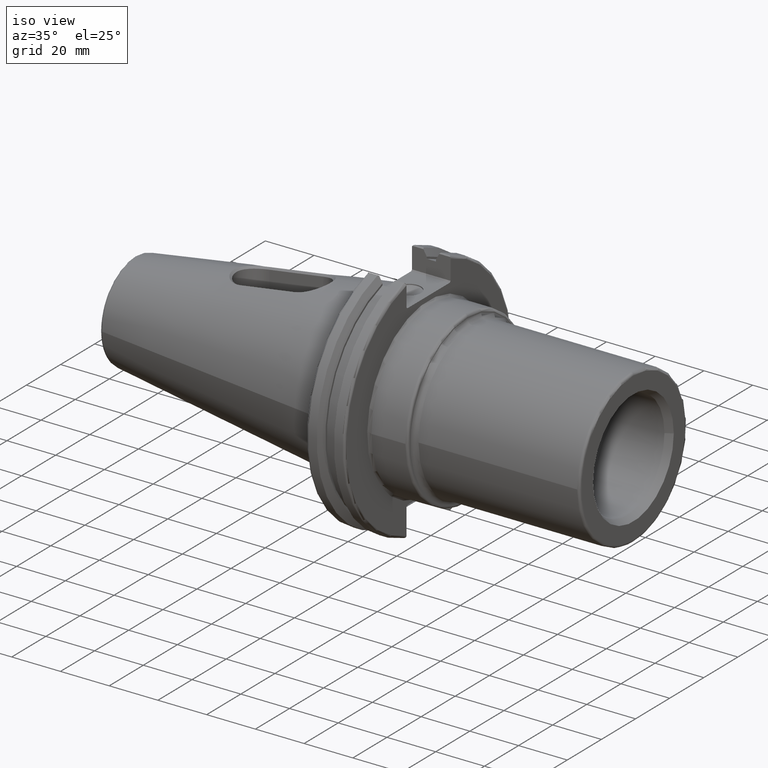
[diagram: clean part render]
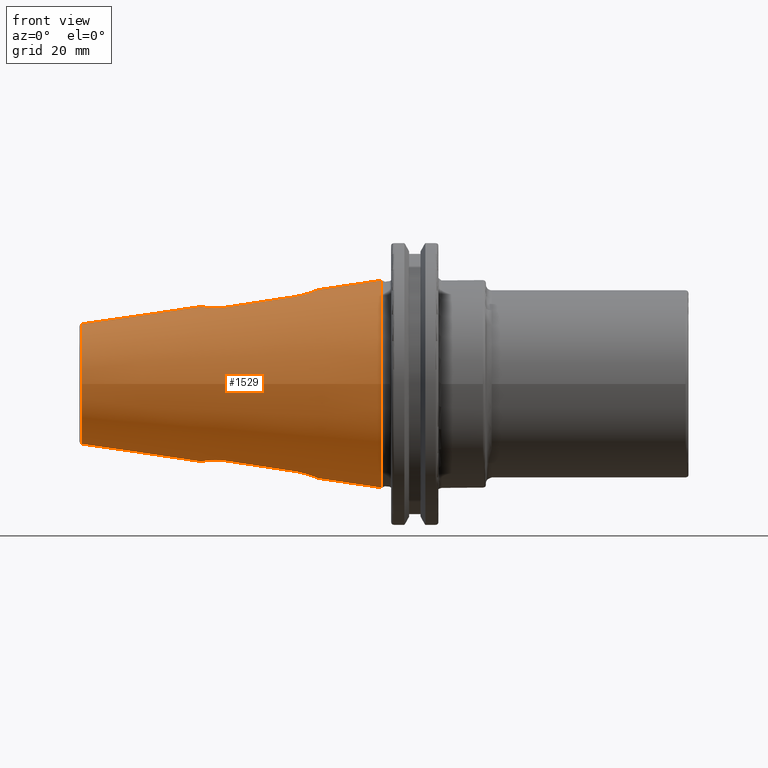
[diagram: tour spotlight — one face highlighted and labeled with its STEP entity id]
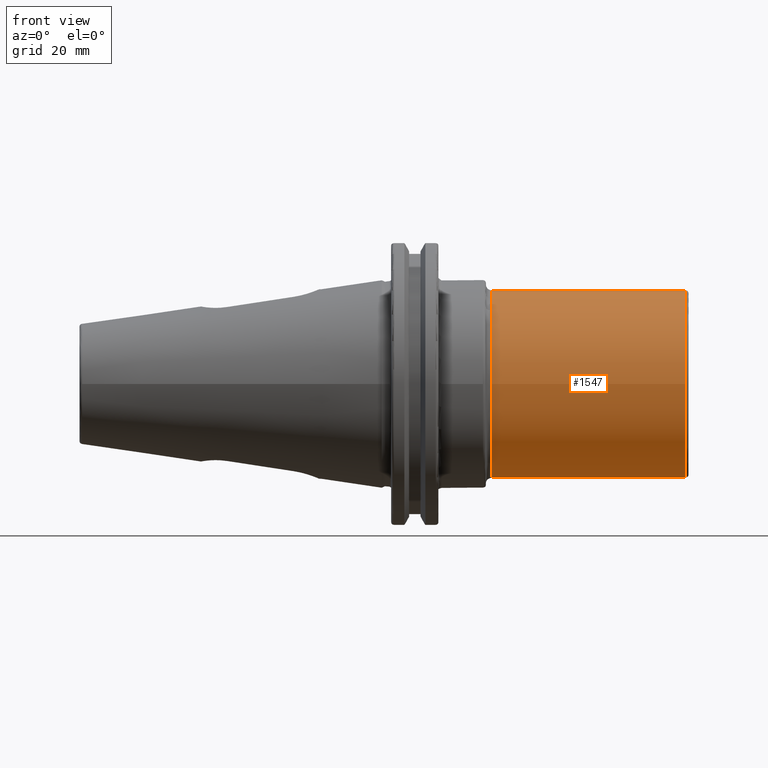
[diagram: tour spotlight — one face highlighted and labeled with its STEP entity id]
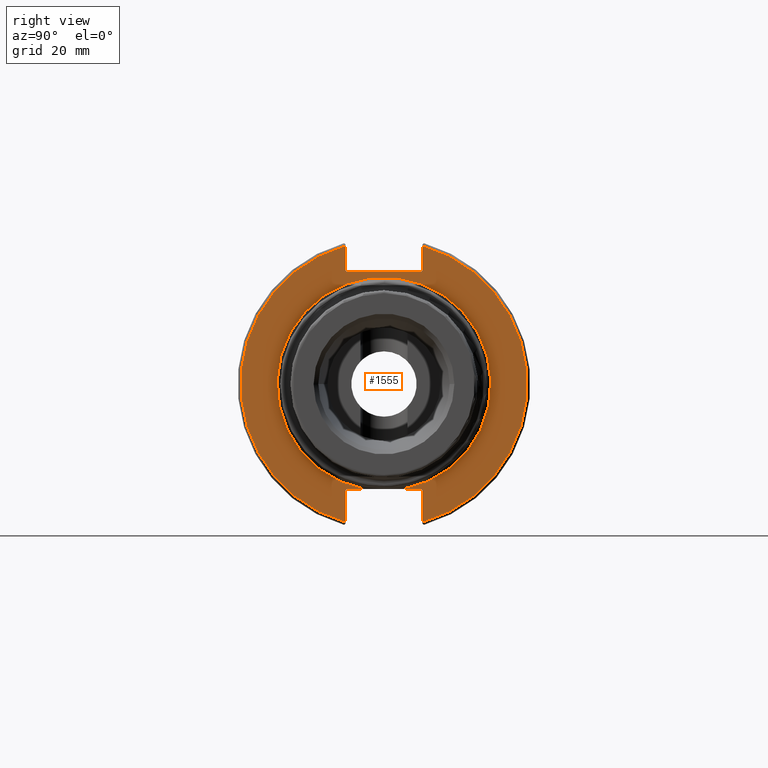
[diagram: tour spotlight — one face highlighted and labeled with its STEP entity id]
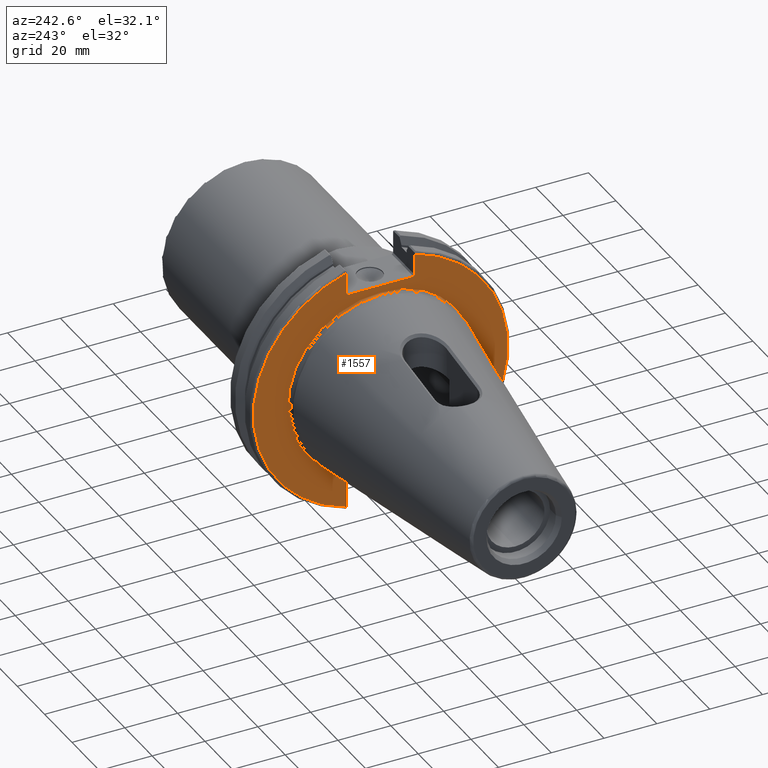
[diagram: tour spotlight — one face highlighted and labeled with its STEP entity id]
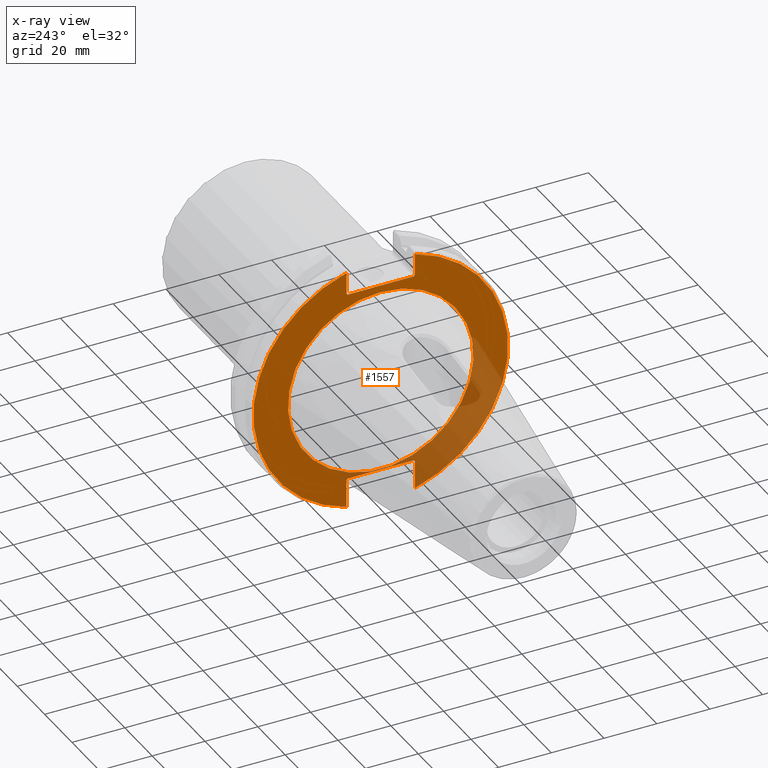
[diagram: x-ray of the same camera — body ghosted, this tour face saturated]
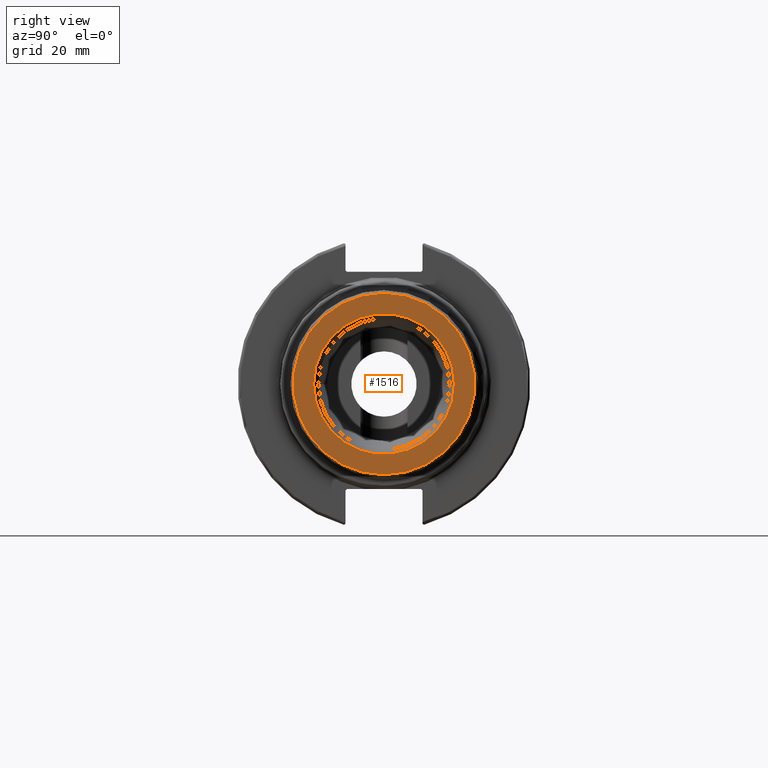
[diagram: tour spotlight — one face highlighted and labeled with its STEP entity id]
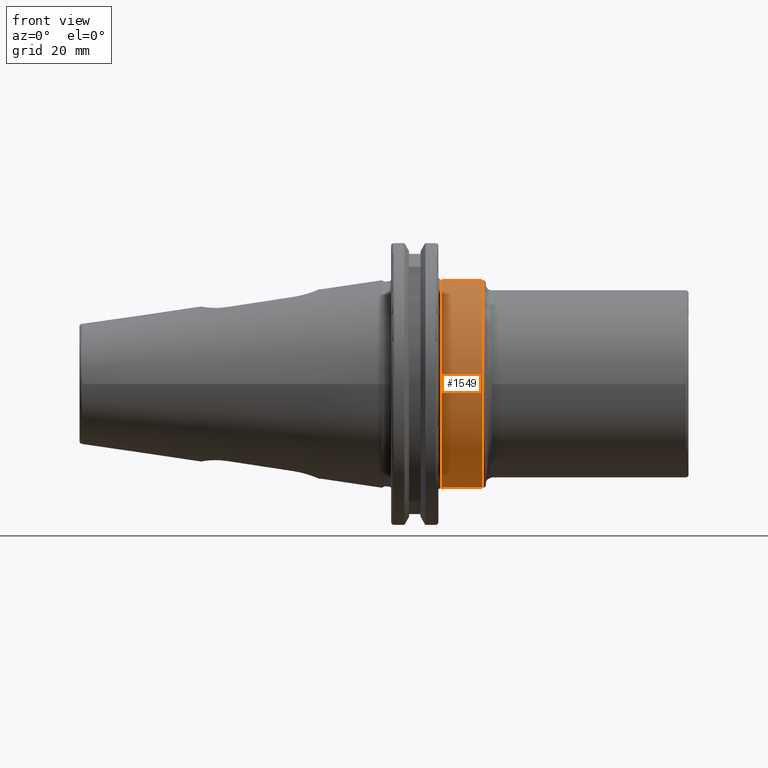
[diagram: tour spotlight — one face highlighted and labeled with its STEP entity id]
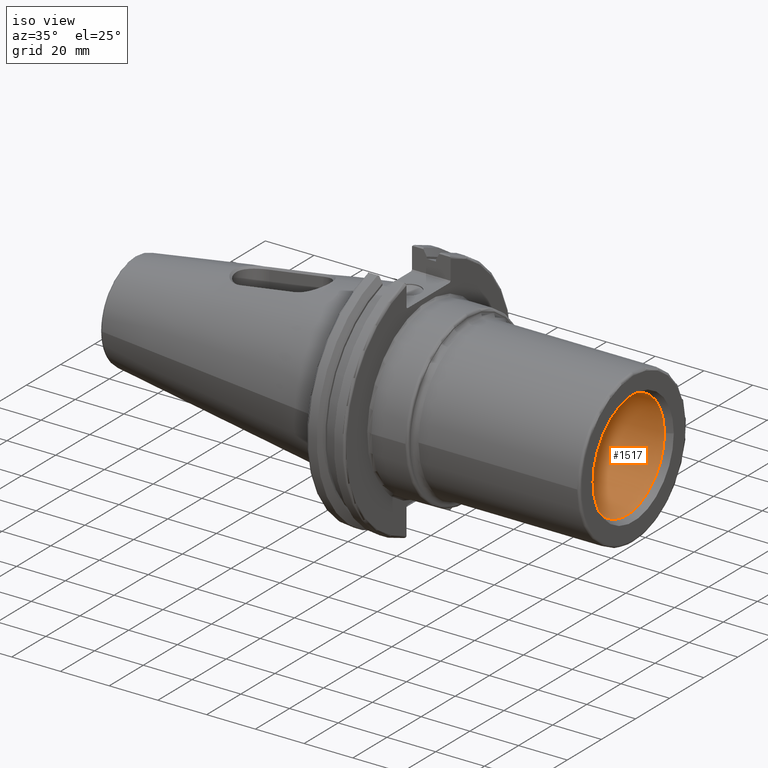
[diagram: tour spotlight — one face highlighted and labeled with its STEP entity id]
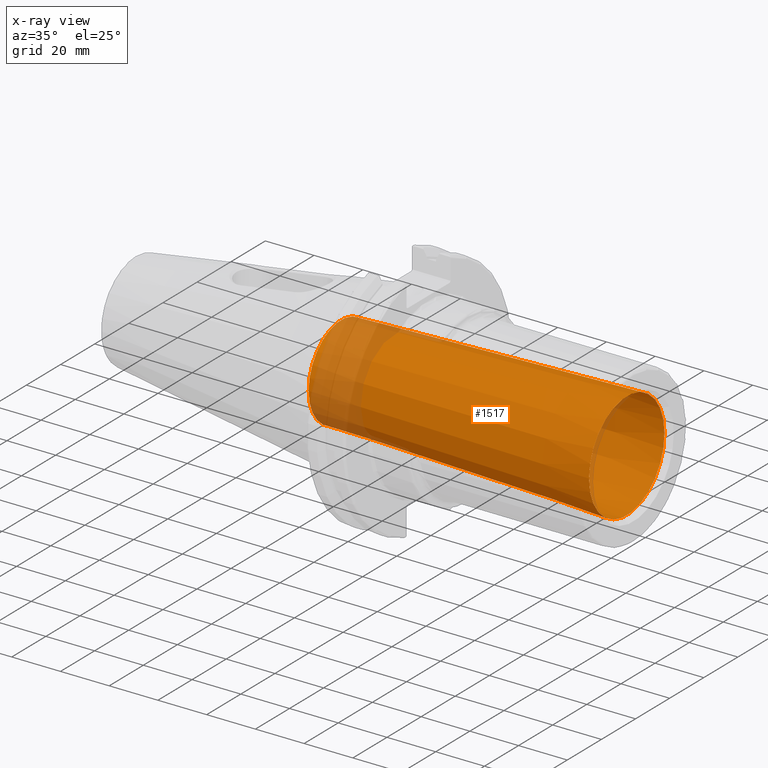
[diagram: x-ray of the same camera — body ghosted, this tour face saturated]
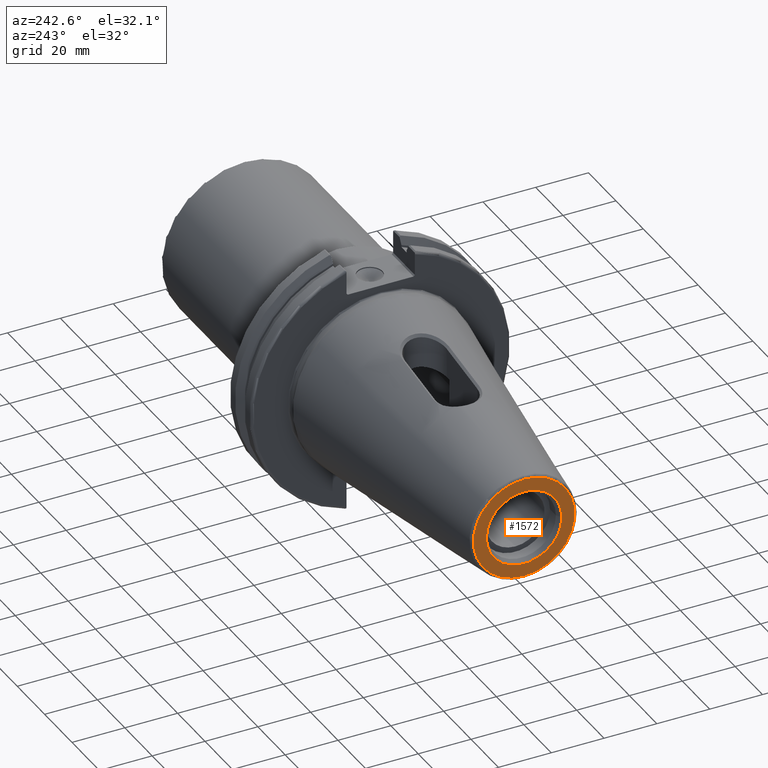
[diagram: tour spotlight — one face highlighted and labeled with its STEP entity id]
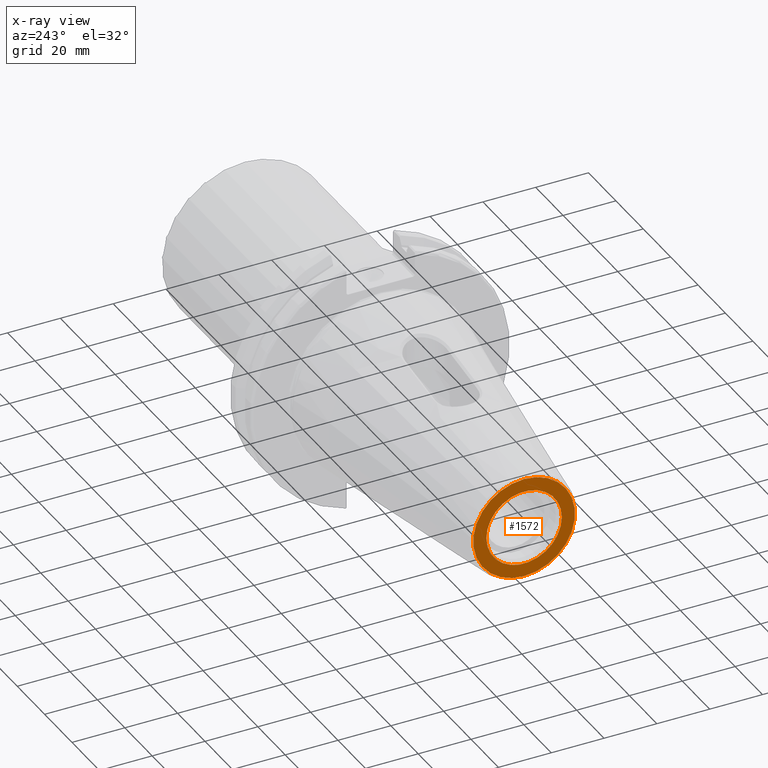
[diagram: x-ray of the same camera — body ghosted, this tour face saturated]
A machine part: a face-by-face anatomy tour. The part has 88 B-rep faces; the first image is the clean iso view, then the 8 largest visible faces are spotlighted one at a time (largest first), each with its STEP entity span.

Face 1 — front view, entity #1529. In plain terms, the highlighted conical surface has half-angle 8.297 deg.
Definition (entity closure, byte-faithful):
#59=B_SPLINE_CURVE_WITH_KNOTS('',3,(#2263,#2264,#2265,#2266,#2267,#2268,
#2269,#2270,#2271,#2272,#2273,#2274,#2275,#2276,#2277,#2278,#2279,#2280,
#2281,#2282,#2283),.UNSPECIFIED.,.F.,.F.,(4,2,1,1,1,1,1,1,1,1,1,1,1,1,1,
2,4),(-2.35421214941561,-2.33349746784585,-2.10014772106126,-1.86679797427668,
-1.63344822749209,-1.5167733540998,-1.40009848070751,-1.16674873392292,
-1.10841129722678,-0.933398987138338,-0.875061550442192,-0.816724113746046,
-0.700049240353754,-0.466699493569169,-0.233349746784585,0.,0.0207146813568596),
 .UNSPECIFIED.);
#60=B_SPLINE_CURVE_WITH_KNOTS('',3,(#2304,#2305,#2306,#2307),
 .UNSPECIFIED.,.F.,.F.,(4,4),(-2.22247206841338,9.90994026348012E-17),
 .UNSPECIFIED.);
#62=B_SPLINE_CURVE_WITH_KNOTS('',3,(#2330,#2331,#2332,#2333),
 .UNSPECIFIED.,.F.,.F.,(4,4),(-2.36735060618624,-2.35421214941561),
 .UNSPECIFIED.);
#64=B_SPLINE_CURVE_WITH_KNOTS('',3,(#2406,#2407,#2408,#2409,#2410,#2411,
#2412,#2413,#2414,#2415,#2416,#2417,#2418,#2419,#2420,#2421),
 .UNSPECIFIED.,.F.,.F.,(4,1,1,1,1,1,1,1,1,1,1,1,1,4),(-4.81087357235702,
-4.46220708717877,-4.28787384458965,-4.11354060200052,-4.02637398070596,
-3.9392073594114,-3.76487411682227,-3.41620763164402,-3.2418743890549,-3.06754114646577,
-2.89320790387665,-2.71887466128752,-2.5445414186984,-2.37020817610927),
 .UNSPECIFIED.);
#66=B_SPLINE_CURVE_WITH_KNOTS('',3,(#2456,#2457,#2458,#2459),
 .UNSPECIFIED.,.F.,.F.,(4,4),(-2.23527779773654,-2.22247206841338),
 .UNSPECIFIED.);
#69=B_SPLINE_CURVE_WITH_KNOTS('',3,(#2490,#2491,#2492,#2493),
 .UNSPECIFIED.,.F.,.F.,(4,4),(-2.23527779773655,-0.0128057293230532),
 .UNSPECIFIED.);
#70=B_SPLINE_CURVE_WITH_KNOTS('',3,(#2510,#2511,#2512,#2513),
 .UNSPECIFIED.,.F.,.F.,(4,4),(-0.0128057293237043,-5.74340356605054E-15),
 .UNSPECIFIED.);
#72=B_SPLINE_CURVE_WITH_KNOTS('',3,(#2534,#2535,#2536,#2537),
 .UNSPECIFIED.,.F.,.F.,(4,4),(0.0207146813568593,0.0338531377977032),
 .UNSPECIFIED.);
#76=B_SPLINE_CURVE_WITH_KNOTS('',3,(#2594,#2595,#2596,#2597),
 .UNSPECIFIED.,.F.,.F.,(4,4),(-2.23527779773655,-0.0128057293231697),
 .UNSPECIFIED.);
#77=B_SPLINE_CURVE_WITH_KNOTS('',3,(#2599,#2600,#2601,#2602),
 .UNSPECIFIED.,.F.,.F.,(4,4),(2.3542121492027,2.36735060564355),
 .UNSPECIFIED.);
#78=B_SPLINE_CURVE_WITH_KNOTS('',3,(#2604,#2605,#2606,#2607,#2608,#2609,
#2610,#2611,#2612,#2613,#2614,#2615,#2616,#2617,#2618,#2619,#2620),
 .UNSPECIFIED.,.F.,.F.,(4,1,1,1,1,1,1,1,1,1,1,1,1,1,4),(-0.0207146815697586,
0.318560579969164,0.488198210738626,0.657835841508088,0.700245249200453,
0.742654656892819,0.82747347227755,0.997111103047011,1.33638636458593,1.5060239953554,
1.67566162612486,1.84529925689432,2.01493688766378,2.18457451843324,2.3542121492027),
 .UNSPECIFIED.);
#79=B_SPLINE_CURVE_WITH_KNOTS('',3,(#2622,#2623,#2624,#2625),
 .UNSPECIFIED.,.F.,.F.,(4,4),(-0.0338531383403956,-0.0207146815697594),
 .UNSPECIFIED.);
#80=B_SPLINE_CURVE_WITH_KNOTS('',3,(#2627,#2628,#2629,#2630),
 .UNSPECIFIED.,.F.,.F.,(4,4),(-2.2224720684135,9.60419316476332E-16),
 .UNSPECIFIED.);
#81=B_SPLINE_CURVE_WITH_KNOTS('',3,(#2632,#2633,#2634,#2635),
 .UNSPECIFIED.,.F.,.F.,(4,4),(-2.23527779773654,-2.22247206841285),
 .UNSPECIFIED.);
#82=B_SPLINE_CURVE_WITH_KNOTS('',3,(#2637,#2638,#2639,#2640,#2641,#2642,
#2643,#2644,#2645,#2646,#2647,#2648,#2649,#2650),.UNSPECIFIED.,.F.,.F.,
(4,1,1,1,1,1,1,1,1,1,1,4),(-2.47096288106336,-2.12229639588511,-1.94796315329599,
-1.77362991070686,-1.59929666811774,-1.42496342552861,-1.07629694035036,
-0.9891303190558,-0.727630455172112,-0.553297212582987,-0.378963969993862,
-0.0302974848156119),.UNSPECIFIED.);
#83=B_SPLINE_CURVE_WITH_KNOTS('',3,(#2651,#2652,#2653,#2654),
 .UNSPECIFIED.,.F.,.F.,(4,4),(-0.0128057293231693,-5.50646701400306E-15),
 .UNSPECIFIED.);
#130=FACE_BOUND('',#277,.T.);
#131=FACE_BOUND('',#278,.T.);
#187=FACE_OUTER_BOUND('',#276,.T.);
#276=EDGE_LOOP('',(#1090,#1091,#1092,#1093,#1094));
#277=EDGE_LOOP('',(#1095,#1096,#1097,#1098,#1099,#1100,#1101,#1102));
#278=EDGE_LOOP('',(#1103,#1104,#1105,#1106,#1107,#1108,#1109,#1110));
#378=LINE('',#2588,#484);
#484=VECTOR('',#1808,27.5166666666666);
#575=CIRCLE('',#1638,34.925);
#576=CIRCLE('',#1639,20.233121911427);
#577=CIRCLE('',#1640,20.233121911427);
#637=VERTEX_POINT('',#2236);
#640=VERTEX_POINT('',#2261);
#642=VERTEX_POINT('',#2301);
#643=VERTEX_POINT('',#2303);
#646=VERTEX_POINT('',#2403);
#647=VERTEX_POINT('',#2405);
#649=VERTEX_POINT('',#2480);
#652=VERTEX_POINT('',#2488);
#662=VERTEX_POINT('',#2585);
#663=VERTEX_POINT('',#2587);
#664=VERTEX_POINT('',#2589);
#665=VERTEX_POINT('',#2592);
#666=VERTEX_POINT('',#2593);
#667=VERTEX_POINT('',#2598);
#668=VERTEX_POINT('',#2603);
#669=VERTEX_POINT('',#2621);
#670=VERTEX_POINT('',#2626);
#671=VERTEX_POINT('',#2631);
#672=VERTEX_POINT('',#2636);
#798=EDGE_CURVE('',#640,#637,#59,.T.);
#800=EDGE_CURVE('',#642,#643,#60,.T.);
#803=EDGE_CURVE('',#643,#640,#62,.T.);
#806=EDGE_CURVE('',#646,#647,#64,.T.);
#809=EDGE_CURVE('',#647,#642,#66,.T.);
#814=EDGE_CURVE('',#652,#649,#69,.T.);
#815=EDGE_CURVE('',#649,#646,#70,.T.);
#817=EDGE_CURVE('',#637,#652,#72,.T.);
#831=EDGE_CURVE('',#662,#662,#575,.T.);
#832=EDGE_CURVE('',#662,#663,#378,.T.);
#833=EDGE_CURVE('',#664,#663,#576,.T.);
#834=EDGE_CURVE('',#663,#664,#577,.T.);
#835=EDGE_CURVE('',#665,#666,#76,.T.);
#836=EDGE_CURVE('',#667,#665,#77,.T.);
#837=EDGE_CURVE('',#668,#667,#78,.T.);
#838=EDGE_CURVE('',#669,#668,#79,.T.);
#839=EDGE_CURVE('',#670,#669,#80,.T.);
#840=EDGE_CURVE('',#671,#670,#81,.T.);
#841=EDGE_CURVE('',#672,#671,#82,.T.);
#842=EDGE_CURVE('',#666,#672,#83,.T.);
#1090=ORIENTED_EDGE('',*,*,#831,.F.);
#1091=ORIENTED_EDGE('',*,*,#832,.T.);
#1092=ORIENTED_EDGE('',*,*,#833,.F.);
#1093=ORIENTED_EDGE('',*,*,#834,.F.);
#1094=ORIENTED_EDGE('',*,*,#832,.F.);
#1095=ORIENTED_EDGE('',*,*,#835,.F.);
#1096=ORIENTED_EDGE('',*,*,#836,.F.);
#1097=ORIENTED_EDGE('',*,*,#837,.F.);
#1098=ORIENTED_EDGE('',*,*,#838,.F.);
#1099=ORIENTED_EDGE('',*,*,#839,.F.);
#1100=ORIENTED_EDGE('',*,*,#840,.F.);
#1101=ORIENTED_EDGE('',*,*,#841,.F.);
#1102=ORIENTED_EDGE('',*,*,#842,.F.);
#1103=ORIENTED_EDGE('',*,*,#814,.F.);
#1104=ORIENTED_EDGE('',*,*,#817,.F.);
#1105=ORIENTED_EDGE('',*,*,#798,.F.);
#1106=ORIENTED_EDGE('',*,*,#803,.F.);
#1107=ORIENTED_EDGE('',*,*,#800,.F.);
#1108=ORIENTED_EDGE('',*,*,#809,.F.);
#1109=ORIENTED_EDGE('',*,*,#806,.F.);
#1110=ORIENTED_EDGE('',*,*,#815,.F.);
#1507=CONICAL_SURFACE('',#1637,27.5166666666666,0.14481249823894);
#1529=ADVANCED_FACE('',(#187,#130,#131),#1507,.T.);
#1637=AXIS2_PLACEMENT_3D('',#2584,#1804,#1805);
#1638=AXIS2_PLACEMENT_3D('',#2586,#1806,#1807);
#1639=AXIS2_PLACEMENT_3D('',#2590,#1809,#1810);
#1640=AXIS2_PLACEMENT_3D('',#2591,#1811,#1812);
#1804=DIRECTION('center_axis',(1.,0.,0.));
#1805=DIRECTION('ref_axis',(0.,1.,0.));
#1806=DIRECTION('center_axis',(1.,0.,0.));
#1807=DIRECTION('ref_axis',(0.,0.,-1.));
#1808=DIRECTION('',(-0.989532981063281,0.144306893071729,1.76724974695192E-17));
#1809=DIRECTION('center_axis',(-1.,0.,0.));
#1810=DIRECTION('ref_axis',(0.,-1.,3.06161699786838E-17));
#1811=DIRECTION('center_axis',(-1.,0.,0.));
#1812=DIRECTION('ref_axis',(0.,-1.,3.06161699786838E-17));
#2236=CARTESIAN_POINT('',(-52.0352669286039,8.80638937732198,-25.8792006674735));
#2261=CARTESIAN_POINT('',(-52.0352669286038,-8.806389377322,-25.8792006674735));
#2263=CARTESIAN_POINT('Ctrl Pts',(-52.0352669286038,-8.806389377322,-25.8792006674735));
#2264=CARTESIAN_POINT('Ctrl Pts',(-52.1120509981656,-8.80509922972445,-25.8678114434477));
#2265=CARTESIAN_POINT('Ctrl Pts',(-52.1885881511942,-8.80286562613427,-25.8567895264408));
#2266=CARTESIAN_POINT('Ctrl Pts',(-53.1241766574662,-8.76235918186861,-25.7262775095567));
#2267=CARTESIAN_POINT('Ctrl Pts',(-54.939132411957,-8.43558000250762,-25.5623655076846));
#2268=CARTESIAN_POINT('Ctrl Pts',(-57.4240670296496,-7.06378275060467,-25.6101266546836));
#2269=CARTESIAN_POINT('Ctrl Pts',(-58.9295855732134,-5.50040429387446,-25.7686767421379));
#2270=CARTESIAN_POINT('Ctrl Pts',(-59.8800356852703,-3.93533632843352,-25.905031819629));
#2271=CARTESIAN_POINT('Ctrl Pts',(-60.5693397217138,-2.22492652167479,-26.0228310194473));
#2272=CARTESIAN_POINT('Ctrl Pts',(-60.8032763108253,-0.646441274221013,
-26.068990914779));
#2273=CARTESIAN_POINT('Ctrl Pts',(-60.7378714867989,1.08409950649585,-26.0564044741698));
#2274=CARTESIAN_POINT('Ctrl Pts',(-60.5272739840991,2.21931300195767,-26.0161942391121));
#2275=CARTESIAN_POINT('Ctrl Pts',(-60.137646418412,3.29509830800697,-25.9492267150547));
#2276=CARTESIAN_POINT('Ctrl Pts',(-59.762722119777,4.13108687054064,-25.8882866178528));
#2277=CARTESIAN_POINT('Ctrl Pts',(-58.9289360428793,5.50145909508377,-25.768666923588));
#2278=CARTESIAN_POINT('Ctrl Pts',(-57.4247401340733,7.06368684613524,-25.6102472117696));
#2279=CARTESIAN_POINT('Ctrl Pts',(-54.9388777745343,8.43593781705886,-25.5623553549332));
#2280=CARTESIAN_POINT('Ctrl Pts',(-53.1242191896381,8.76235477754441,-25.7262853119984));
#2281=CARTESIAN_POINT('Ctrl Pts',(-52.1885860586893,8.8028661008514,-25.8567891707746));
#2282=CARTESIAN_POINT('Ctrl Pts',(-52.1120509988975,8.80509922971213,-25.8678114433391));
#2283=CARTESIAN_POINT('Ctrl Pts',(-52.0352669286038,8.80638937732198,-25.8792006674735));
#2301=CARTESIAN_POINT('',(-29.9279166789803,-8.81619645334572,-29.2612300326957));
#2303=CARTESIAN_POINT('',(-51.888893036363,-8.8076528129417,-25.9013183068816));
#2304=CARTESIAN_POINT('Ctrl Pts',(-29.9279166789802,-8.81619645334572,-29.2612300326957));
#2305=CARTESIAN_POINT('Ctrl Pts',(-37.6993168973083,-8.81364980495399,-28.0783450702107));
#2306=CARTESIAN_POINT('Ctrl Pts',(-44.9953577196163,-8.81082700837986,-26.9620792626287));
#2307=CARTESIAN_POINT('Ctrl Pts',(-51.888893036363,-8.8076528129417,-25.9013183068816));
#2330=CARTESIAN_POINT('Ctrl Pts',(-51.8888930363629,-8.80765281294171,-25.9013183068816));
#2331=CARTESIAN_POINT('Ctrl Pts',(-51.9377703738018,-8.80763030689591,-25.8937971774765));
#2332=CARTESIAN_POINT('Ctrl Pts',(-51.986566002393,-8.80720766402272,-25.886424376272));
#2333=CARTESIAN_POINT('Ctrl Pts',(-52.0352669286039,-8.806389377322,-25.8792006674735));
#2403=CARTESIAN_POINT('',(-29.7935343676636,8.81624044651996,-29.2816837935747));
#2405=CARTESIAN_POINT('',(-29.7935343676636,-8.81624044651998,-29.2816837935747));
#2406=CARTESIAN_POINT('Ctrl Pts',(-29.7935343676636,8.81624044651996,-29.2816837935747));
#2407=CARTESIAN_POINT('Ctrl Pts',(-28.4984556246087,8.81666400443657,-29.478796709772));
#2408=CARTESIAN_POINT('Ctrl Pts',(-26.4724234809679,8.36914797751406,-29.9293795583342));
#2409=CARTESIAN_POINT('Ctrl Pts',(-24.2415919991017,6.9453936784524,-30.6205758415491));
#2410=CARTESIAN_POINT('Ctrl Pts',(-23.1363380723116,5.85169442869043,-31.0109916201072));
#2411=CARTESIAN_POINT('Ctrl Pts',(-22.3597592030482,4.77634380797591,-31.3054651954803));
#2412=CARTESIAN_POINT('Ctrl Pts',(-21.7038097805431,3.61087909509774,-31.5643836294103));
#2413=CARTESIAN_POINT('Ctrl Pts',(-20.908697807456,1.32757791194458,-31.8966419354798));
#2414=CARTESIAN_POINT('Ctrl Pts',(-20.9165744445798,-1.32930428471837,-31.8946589563528));
#2415=CARTESIAN_POINT('Ctrl Pts',(-21.8143227102726,-3.93298421407838,-31.5180541616274));
#2416=CARTESIAN_POINT('Ctrl Pts',(-22.9131069024901,-5.62748104926105,-31.0904657053728));
#2417=CARTESIAN_POINT('Ctrl Pts',(-24.2420638955526,-6.94808595533303,-30.6196620364423));
#2418=CARTESIAN_POINT('Ctrl Pts',(-25.9150082445549,-8.01059334378013,-30.1032591392669));
#2419=CARTESIAN_POINT('Ctrl Pts',(-27.8184883955038,-8.6720387302018,-29.6261910150538));
#2420=CARTESIAN_POINT('Ctrl Pts',(-29.1459949961362,-8.81645222547829,-29.3802402516733));
#2421=CARTESIAN_POINT('Ctrl Pts',(-29.7935343676636,-8.81624044651998,-29.2816837935747));
#2456=CARTESIAN_POINT('Ctrl Pts',(-29.7935343676637,-8.81624044651997,-29.2816837935747));
#2457=CARTESIAN_POINT('Ctrl Pts',(-29.838344313456,-8.81622579134369,-29.2748636529948));
#2458=CARTESIAN_POINT('Ctrl Pts',(-29.88313841199,-8.81621112695644,-29.2680457334936));
#2459=CARTESIAN_POINT('Ctrl Pts',(-29.9279166789803,-8.81619645334571,-29.2612300326957));
#2480=CARTESIAN_POINT('',(-29.9279166789803,8.81619645334571,-29.2612300326957));
#2488=CARTESIAN_POINT('',(-51.888893036363,8.80765281294168,-25.9013183068816));
#2490=CARTESIAN_POINT('Ctrl Pts',(-51.888893036363,8.80765281294168,-25.9013183068816));
#2491=CARTESIAN_POINT('Ctrl Pts',(-44.9953577196988,8.81082700837979,-26.962079262616));
#2492=CARTESIAN_POINT('Ctrl Pts',(-37.6993168973797,8.81364980495396,-28.0783450701998));
#2493=CARTESIAN_POINT('Ctrl Pts',(-29.9279166789803,8.81619645334571,-29.2612300326957));
#2510=CARTESIAN_POINT('Ctrl Pts',(-29.9279166789871,8.8161964533457,-29.2612300326947));
#2511=CARTESIAN_POINT('Ctrl Pts',(-29.8831384119945,8.81621112695643,-29.268045733493));
#2512=CARTESIAN_POINT('Ctrl Pts',(-29.8383443134582,8.81622579134368,-29.2748636529944));
#2513=CARTESIAN_POINT('Ctrl Pts',(-29.7935343676637,8.81624044651996,-29.2816837935747));
#2534=CARTESIAN_POINT('Ctrl Pts',(-52.0352669286038,8.80638937732198,-25.8792006674735));
#2535=CARTESIAN_POINT('Ctrl Pts',(-51.9865660026507,8.80720766401837,-25.8864243762338));
#2536=CARTESIAN_POINT('Ctrl Pts',(-51.9377703740466,8.80763030689577,-25.8937971774388));
#2537=CARTESIAN_POINT('Ctrl Pts',(-51.8888930363629,8.80765281294168,-25.9013183068816));
#2584=CARTESIAN_POINT('Origin',(-50.8,0.,0.));
#2585=CARTESIAN_POINT('',(-8.88178419700125E-15,-34.925,-4.27707894602213E-15));
#2586=CARTESIAN_POINT('Origin',(0.,0.,0.));
#2587=CARTESIAN_POINT('',(-100.744306893072,-20.233121911427,-2.47784279855872E-15));
#2588=CARTESIAN_POINT('',(-50.8,-27.5166666666666,-3.3698197756538E-15));
#2589=CARTESIAN_POINT('',(-100.744306893072,-2.47784279855872E-15,20.233121911427));
#2590=CARTESIAN_POINT('Origin',(-100.744306893072,0.,-3.09730349819841E-15));
#2591=CARTESIAN_POINT('Origin',(-100.744306893072,0.,-3.09730349819841E-15));
#2592=CARTESIAN_POINT('',(-51.888893036363,-8.80765281294171,25.9013183068816));
#2593=CARTESIAN_POINT('',(-29.9279166789802,-8.81619645334572,29.2612300326957));
#2594=CARTESIAN_POINT('Ctrl Pts',(-51.888893036363,-8.80765281294171,25.9013183068816));
#2595=CARTESIAN_POINT('Ctrl Pts',(-44.9953577196162,-8.81082700837986,26.9620792626287));
#2596=CARTESIAN_POINT('Ctrl Pts',(-37.6993168973083,-8.81364980495399,28.0783450702107));
#2597=CARTESIAN_POINT('Ctrl Pts',(-29.9279166789802,-8.81619645334572,29.2612300326957));
#2598=CARTESIAN_POINT('',(-52.0352669286038,-8.806389377322,25.8792006674735));
#2599=CARTESIAN_POINT('Ctrl Pts',(-52.0352669286039,-8.806389377322,25.8792006674735));
#2600=CARTESIAN_POINT('Ctrl Pts',(-51.9865660026507,-8.80720766401839,25.8864243762337));
#2601=CARTESIAN_POINT('Ctrl Pts',(-51.9377703740466,-8.8076303068958,25.8937971774388));
#2602=CARTESIAN_POINT('Ctrl Pts',(-51.8888930363629,-8.80765281294171,25.9013183068816));
#2603=CARTESIAN_POINT('',(-52.0352669286039,8.80638937732198,25.8792006674735));
#2604=CARTESIAN_POINT('Ctrl Pts',(-52.0352669286039,8.80638937732198,25.8792006674735));
#2605=CARTESIAN_POINT('Ctrl Pts',(-53.2928742538658,8.78525870427211,25.6926623445424));
#2606=CARTESIAN_POINT('Ctrl Pts',(-55.2962252225925,8.33451440096116,25.5473469333337));
#2607=CARTESIAN_POINT('Ctrl Pts',(-57.5744589700588,6.86224759516759,25.6356859690579));
#2608=CARTESIAN_POINT('Ctrl Pts',(-58.5633448982283,5.86109403880151,25.7311099758609));
#2609=CARTESIAN_POINT('Ctrl Pts',(-59.1522365836641,5.08277389653386,25.8033884539864));
#2610=CARTESIAN_POINT('Ctrl Pts',(-59.5173482262341,4.5358170271703,25.8523579000116));
#2611=CARTESIAN_POINT('Ctrl Pts',(-60.0828916789782,3.52425737063041,25.936958064853));
#2612=CARTESIAN_POINT('Ctrl Pts',(-60.8498761568781,1.27297661936798,26.0754395614529));
#2613=CARTESIAN_POINT('Ctrl Pts',(-60.8434272051444,-1.27361586137585,26.075671333276));
#2614=CARTESIAN_POINT('Ctrl Pts',(-59.9739153879902,-3.84150125679452,25.9172465208569));
#2615=CARTESIAN_POINT('Ctrl Pts',(-58.8967047933047,-5.52450912045028,25.763415710008));
#2616=CARTESIAN_POINT('Ctrl Pts',(-57.5713544359849,-6.86357244556374,25.6350449124525));
#2617=CARTESIAN_POINT('Ctrl Pts',(-55.8673687337253,-7.96462616344069,25.5704920921941));
#2618=CARTESIAN_POINT('Ctrl Pts',(-53.9532651457635,-8.64035393506386,25.6404082767162));
#2619=CARTESIAN_POINT('Ctrl Pts',(-52.6640706036911,-8.79582404058777,25.7859315041603));
#2620=CARTESIAN_POINT('Ctrl Pts',(-52.0352669286038,-8.806389377322,25.8792006674735));
#2621=CARTESIAN_POINT('',(-51.888893036363,8.80765281294168,25.9013183068816));
#2622=CARTESIAN_POINT('Ctrl Pts',(-51.8888930363629,8.80765281294168,25.9013183068816));
#2623=CARTESIAN_POINT('Ctrl Pts',(-51.9377703738018,8.80763030689588,25.8937971774765));
#2624=CARTESIAN_POINT('Ctrl Pts',(-51.986566002393,8.80720766402269,25.886424376272));
#2625=CARTESIAN_POINT('Ctrl Pts',(-52.0352669286039,8.80638937732197,25.8792006674735));
#2626=CARTESIAN_POINT('',(-29.9279166789803,8.81619645334571,29.2612300326957));
#2627=CARTESIAN_POINT('Ctrl Pts',(-29.9279166789802,8.81619645334571,29.2612300326957));
#2628=CARTESIAN_POINT('Ctrl Pts',(-37.6993168973797,8.81364980495397,28.0783450701998));
#2629=CARTESIAN_POINT('Ctrl Pts',(-44.9953577196988,8.81082700837979,26.962079262616));
#2630=CARTESIAN_POINT('Ctrl Pts',(-51.888893036363,8.80765281294168,25.9013183068816));
#2631=CARTESIAN_POINT('',(-29.7935343676636,8.81624044651996,29.2816837935747));
#2632=CARTESIAN_POINT('Ctrl Pts',(-29.7935343676637,8.81624044651996,29.2816837935747));
#2633=CARTESIAN_POINT('Ctrl Pts',(-29.8383443134582,8.81622579134368,29.2748636529944));
#2634=CARTESIAN_POINT('Ctrl Pts',(-29.8831384119945,8.81621112695643,29.268045733493));
#2635=CARTESIAN_POINT('Ctrl Pts',(-29.9279166789871,8.8161964533457,29.2612300326947));
#2636=CARTESIAN_POINT('',(-29.7935343676636,-8.81624044651998,29.2816837935747));
#2637=CARTESIAN_POINT('Ctrl Pts',(-29.7935343676636,-8.81624044651998,29.2816837935747));
#2638=CARTESIAN_POINT('Ctrl Pts',(-28.4984556246088,-8.81666400443659,29.4787967097719));
#2639=CARTESIAN_POINT('Ctrl Pts',(-26.4710029090818,-8.36677202546489,29.9300003054183));
#2640=CARTESIAN_POINT('Ctrl Pts',(-24.2434411652648,-6.94735553863206,30.6199207299787));
#2641=CARTESIAN_POINT('Ctrl Pts',(-22.9111352897024,-5.62661386846662,31.0907673787932));
#2642=CARTESIAN_POINT('Ctrl Pts',(-21.8146812966927,-3.93283653908749,31.5179807098003));
#2643=CARTESIAN_POINT('Ctrl Pts',(-20.913860505414,-1.32649791752155,31.8953918557628));
#2644=CARTESIAN_POINT('Ctrl Pts',(-20.9143548152834,0.992562296677426,31.8946605446812));
#2645=CARTESIAN_POINT('Ctrl Pts',(-21.6608383516487,3.61635313187168,31.5818691836892));
#2646=CARTESIAN_POINT('Ctrl Pts',(-22.6838928496852,5.40683911901113,31.171285926992));
#2647=CARTESIAN_POINT('Ctrl Pts',(-24.2447091917215,6.94732004991252,30.6194308663627));
#2648=CARTESIAN_POINT('Ctrl Pts',(-26.4694229389416,8.3668648490834,29.9306237408969));
#2649=CARTESIAN_POINT('Ctrl Pts',(-28.4984556246087,8.81666400443657,29.478796709772));
#2650=CARTESIAN_POINT('Ctrl Pts',(-29.7935343676636,8.81624044651996,29.2816837935747));
#2651=CARTESIAN_POINT('Ctrl Pts',(-29.9279166789803,-8.81619645334571,29.2612300326957));
#2652=CARTESIAN_POINT('Ctrl Pts',(-29.88313841199,-8.81621112695644,29.2680457334936));
#2653=CARTESIAN_POINT('Ctrl Pts',(-29.838344313456,-8.81622579134369,29.2748636529948));
#2654=CARTESIAN_POINT('Ctrl Pts',(-29.7935343676637,-8.81624044651997,29.2816837935747));

Face 2 — front view, entity #1547. In plain terms, the highlighted cylindrical surface (bore or boss wall) has radius 31.5 mm, axis along (1, 0, 0).
Definition (entity closure, byte-faithful):
#46=CYLINDRICAL_SURFACE('',#1659,31.5);
#205=FACE_OUTER_BOUND('',#296,.T.);
#296=EDGE_LOOP('',(#1199,#1200,#1201,#1202,#1203,#1204));
#398=LINE('',#3043,#504);
#504=VECTOR('',#1870,31.5);
#585=CIRCLE('',#1657,31.5);
#586=CIRCLE('',#1658,31.5);
#587=CIRCLE('',#1660,31.5);
#588=CIRCLE('',#1661,31.5);
#691=VERTEX_POINT('',#3036);
#692=VERTEX_POINT('',#3038);
#693=VERTEX_POINT('',#3042);
#694=VERTEX_POINT('',#3044);
#880=EDGE_CURVE('',#691,#692,#585,.T.);
#881=EDGE_CURVE('',#692,#691,#586,.T.);
#882=EDGE_CURVE('',#692,#693,#398,.T.);
#883=EDGE_CURVE('',#694,#693,#587,.T.);
#884=EDGE_CURVE('',#693,#694,#588,.T.);
#1199=ORIENTED_EDGE('',*,*,#881,.F.);
#1200=ORIENTED_EDGE('',*,*,#882,.T.);
#1201=ORIENTED_EDGE('',*,*,#883,.F.);
#1202=ORIENTED_EDGE('',*,*,#884,.F.);
#1203=ORIENTED_EDGE('',*,*,#882,.F.);
#1204=ORIENTED_EDGE('',*,*,#880,.F.);
#1547=ADVANCED_FACE('',(#205),#46,.T.);
#1657=AXIS2_PLACEMENT_3D('',#3039,#1864,#1865);
#1658=AXIS2_PLACEMENT_3D('',#3040,#1866,#1867);
#1659=AXIS2_PLACEMENT_3D('',#3041,#1868,#1869);
#1660=AXIS2_PLACEMENT_3D('',#3045,#1871,#1872);
#1661=AXIS2_PLACEMENT_3D('',#3046,#1873,#1874);
#1864=DIRECTION('center_axis',(1.,0.,0.));
#1865=DIRECTION('ref_axis',(0.,-1.,1.83697019872103E-16));
#1866=DIRECTION('center_axis',(1.,0.,0.));
#1867=DIRECTION('ref_axis',(0.,-1.,1.83697019872103E-16));
#1868=DIRECTION('center_axis',(1.,0.,0.));
#1869=DIRECTION('ref_axis',(0.,1.,0.));
#1870=DIRECTION('',(-1.,0.,0.));
#1871=DIRECTION('center_axis',(-1.,0.,0.));
#1872=DIRECTION('ref_axis',(0.,-1.,1.83697019872103E-16));
#1873=DIRECTION('center_axis',(-1.,0.,0.));
#1874=DIRECTION('ref_axis',(0.,-1.,1.83697019872103E-16));
#3036=CARTESIAN_POINT('',(102.12,-3.85763741731416E-15,31.5));
#3038=CARTESIAN_POINT('',(102.12,-31.5,-3.85763741731416E-15));
#3039=CARTESIAN_POINT('Origin',(102.12,0.,0.));
#3040=CARTESIAN_POINT('Origin',(102.12,0.,0.));
#3041=CARTESIAN_POINT('Origin',(69.06,0.,0.));
#3042=CARTESIAN_POINT('',(37.,-31.5,-3.85763741731416E-15));
#3043=CARTESIAN_POINT('',(69.06,-31.5,-3.85763741731416E-15));
#3044=CARTESIAN_POINT('',(37.,-3.85763741731416E-15,31.5));
#3045=CARTESIAN_POINT('Origin',(37.,0.,0.));
#3046=CARTESIAN_POINT('Origin',(37.,0.,0.));

Face 3 — right view, entity #1555. In plain terms, the highlighted planar face has unit normal (1, 0, 0).
Definition (entity closure, byte-faithful):
#147=PLANE('',#1680);
#213=FACE_OUTER_BOUND('',#306,.T.);
#306=EDGE_LOOP('',(#1244,#1245,#1246,#1247,#1248,#1249,#1250,#1251,#1252,
#1253,#1254,#1255,#1256,#1257));
#401=LINE('',#3091,#507);
#402=LINE('',#3093,#508);
#403=LINE('',#3095,#509);
#404=LINE('',#3099,#510);
#405=LINE('',#3101,#511);
#406=LINE('',#3103,#512);
#407=LINE('',#3105,#513);
#408=LINE('',#3107,#514);
#409=LINE('',#3111,#515);
#410=LINE('',#3113,#516);
#411=LINE('',#3114,#517);
#507=VECTOR('',#1915,10.);
#508=VECTOR('',#1916,10.);
#509=VECTOR('',#1917,10.);
#510=VECTOR('',#1920,10.);
#511=VECTOR('',#1921,10.);
#512=VECTOR('',#1922,10.);
#513=VECTOR('',#1923,10.);
#514=VECTOR('',#1924,10.);
#515=VECTOR('',#1927,10.);
#516=VECTOR('',#1928,10.);
#517=VECTOR('',#1929,10.);
#591=CIRCLE('',#1665,35.925);
#600=CIRCLE('',#1681,48.2125);
#601=CIRCLE('',#1682,48.2125);
#698=VERTEX_POINT('',#3053);
#699=VERTEX_POINT('',#3060);
#705=VERTEX_POINT('',#3090);
#706=VERTEX_POINT('',#3092);
#707=VERTEX_POINT('',#3094);
#708=VERTEX_POINT('',#3096);
#709=VERTEX_POINT('',#3098);
#710=VERTEX_POINT('',#3100);
#711=VERTEX_POINT('',#3102);
#712=VERTEX_POINT('',#3104);
#713=VERTEX_POINT('',#3106);
#714=VERTEX_POINT('',#3108);
#715=VERTEX_POINT('',#3110);
#716=VERTEX_POINT('',#3112);
#888=EDGE_CURVE('',#698,#699,#591,.T.);
#900=EDGE_CURVE('',#698,#705,#401,.T.);
#901=EDGE_CURVE('',#706,#705,#402,.T.);
#902=EDGE_CURVE('',#706,#707,#403,.T.);
#903=EDGE_CURVE('',#708,#707,#600,.T.);
#904=EDGE_CURVE('',#708,#709,#404,.T.);
#905=EDGE_CURVE('',#710,#709,#405,.T.);
#906=EDGE_CURVE('',#710,#711,#406,.T.);
#907=EDGE_CURVE('',#712,#711,#407,.T.);
#908=EDGE_CURVE('',#712,#713,#408,.T.);
#909=EDGE_CURVE('',#714,#713,#601,.T.);
#910=EDGE_CURVE('',#714,#715,#409,.T.);
#911=EDGE_CURVE('',#716,#715,#410,.T.);
#912=EDGE_CURVE('',#716,#699,#411,.T.);
#1244=ORIENTED_EDGE('',*,*,#888,.F.);
#1245=ORIENTED_EDGE('',*,*,#900,.T.);
#1246=ORIENTED_EDGE('',*,*,#901,.F.);
#1247=ORIENTED_EDGE('',*,*,#902,.T.);
#1248=ORIENTED_EDGE('',*,*,#903,.F.);
#1249=ORIENTED_EDGE('',*,*,#904,.T.);
#1250=ORIENTED_EDGE('',*,*,#905,.F.);
#1251=ORIENTED_EDGE('',*,*,#906,.T.);
#1252=ORIENTED_EDGE('',*,*,#907,.F.);
#1253=ORIENTED_EDGE('',*,*,#908,.T.);
#1254=ORIENTED_EDGE('',*,*,#909,.F.);
#1255=ORIENTED_EDGE('',*,*,#910,.T.);
#1256=ORIENTED_EDGE('',*,*,#911,.F.);
#1257=ORIENTED_EDGE('',*,*,#912,.T.);
#1555=ADVANCED_FACE('',(#213),#147,.T.);
#1665=AXIS2_PLACEMENT_3D('',#3061,#1881,#1882);
#1680=AXIS2_PLACEMENT_3D('',#3089,#1913,#1914);
#1681=AXIS2_PLACEMENT_3D('',#3097,#1918,#1919);
#1682=AXIS2_PLACEMENT_3D('',#3109,#1925,#1926);
#1881=DIRECTION('center_axis',(1.,0.,0.));
#1882=DIRECTION('ref_axis',(0.,-1.,-1.22464679914735E-16));
#1913=DIRECTION('center_axis',(1.,0.,0.));
#1914=DIRECTION('ref_axis',(0.,0.,-1.));
#1915=DIRECTION('',(0.,1.,0.));
#1916=DIRECTION('',(0.,-0.707106781186549,0.707106781186546));
#1917=DIRECTION('',(0.,0.,-1.));
#1918=DIRECTION('center_axis',(-1.,0.,0.));
#1919=DIRECTION('ref_axis',(0.,1.,-6.12323399573677E-17));
#1920=DIRECTION('',(0.,0.,-1.));
#1921=DIRECTION('',(0.,0.707106781186549,0.707106781186546));
#1922=DIRECTION('',(0.,-1.,0.));
#1923=DIRECTION('',(0.,0.707106781186549,-0.707106781186546));
#1924=DIRECTION('',(0.,0.,1.));
#1925=DIRECTION('center_axis',(-1.,0.,0.));
#1926=DIRECTION('ref_axis',(0.,-1.,1.60812264967664E-16));
#1927=DIRECTION('',(0.,0.,1.));
#1928=DIRECTION('',(0.,-0.707106781186549,-0.707106781186546));
#1929=DIRECTION('',(0.,1.,0.));
#3053=CARTESIAN_POINT('',(19.05,6.64017989214148,-35.306));
#3060=CARTESIAN_POINT('',(19.05,-6.64017989214148,-35.306));
#3061=CARTESIAN_POINT('Origin',(19.05,0.,0.));
#3089=CARTESIAN_POINT('Origin',(19.05,0.,0.));
#3090=CARTESIAN_POINT('',(19.05,12.45,-35.306));
#3091=CARTESIAN_POINT('',(19.05,-3.33066907387547E-15,-35.306));
#3092=CARTESIAN_POINT('',(19.05,12.95,-35.806));
#3093=CARTESIAN_POINT('',(19.05,0.635999999999982,-23.492));
#3094=CARTESIAN_POINT('',(19.05,12.95,-46.4407434937254));
#3095=CARTESIAN_POINT('',(19.05,12.95,-17.653));
#3096=CARTESIAN_POINT('',(19.05,12.95,46.4407434937254));
#3097=CARTESIAN_POINT('Origin',(19.05,0.,0.));
#3098=CARTESIAN_POINT('',(19.05,12.95,38.219));
#3099=CARTESIAN_POINT('',(19.05,12.95,18.8595));
#3100=CARTESIAN_POINT('',(19.05,12.45,37.719));
#3101=CARTESIAN_POINT('',(19.05,0.0327499999999836,25.30175));
#3102=CARTESIAN_POINT('',(19.05,-12.45,37.719));
#3103=CARTESIAN_POINT('',(19.05,0.,37.719));
#3104=CARTESIAN_POINT('',(19.05,-12.95,38.219));
#3105=CARTESIAN_POINT('',(19.05,-0.0327499999999817,25.30175));
#3106=CARTESIAN_POINT('',(19.05,-12.95,46.4407434937254));
#3107=CARTESIAN_POINT('',(19.05,-12.95,18.8595));
#3108=CARTESIAN_POINT('',(19.05,-12.95,-46.4407434937254));
#3109=CARTESIAN_POINT('Origin',(19.05,0.,0.));
#3110=CARTESIAN_POINT('',(19.05,-12.95,-35.806));
#3111=CARTESIAN_POINT('',(19.05,-12.95,-17.653));
#3112=CARTESIAN_POINT('',(19.05,-12.45,-35.306));
#3113=CARTESIAN_POINT('',(19.05,-0.635999999999989,-23.492));
#3114=CARTESIAN_POINT('',(19.05,-3.33066907387547E-15,-35.306));

Face 4 — auxiliary view, entity #1557. An x-ray twin of the same camera follows (body ghosted, this face saturated) — the face is partly hidden behind the body. In plain terms, the highlighted planar face has unit normal (-1, 0, 0).
Definition (entity closure, byte-faithful):
#134=FACE_BOUND('',#309,.T.);
#148=PLANE('',#1688);
#215=FACE_OUTER_BOUND('',#308,.T.);
#308=EDGE_LOOP('',(#1263,#1264,#1265,#1266,#1267,#1268,#1269,#1270,#1271,
#1272,#1273,#1274));
#309=EDGE_LOOP('',(#1275));
#412=LINE('',#3128,#518);
#413=LINE('',#3130,#519);
#414=LINE('',#3132,#520);
#415=LINE('',#3134,#521);
#416=LINE('',#3136,#522);
#417=LINE('',#3140,#523);
#418=LINE('',#3142,#524);
#419=LINE('',#3144,#525);
#420=LINE('',#3146,#526);
#421=LINE('',#3147,#527);
#518=VECTOR('',#1944,10.);
#519=VECTOR('',#1945,10.);
#520=VECTOR('',#1946,10.);
#521=VECTOR('',#1947,10.);
#522=VECTOR('',#1948,10.);
#523=VECTOR('',#1951,10.);
#524=VECTOR('',#1952,10.);
#525=VECTOR('',#1953,10.);
#526=VECTOR('',#1954,10.);
#527=VECTOR('',#1955,10.);
#604=CIRCLE('',#1686,35.125);
#606=CIRCLE('',#1689,48.2125);
#607=CIRCLE('',#1690,48.2125);
#719=VERTEX_POINT('',#3119);
#720=VERTEX_POINT('',#3124);
#721=VERTEX_POINT('',#3125);
#722=VERTEX_POINT('',#3127);
#723=VERTEX_POINT('',#3129);
#724=VERTEX_POINT('',#3131);
#725=VERTEX_POINT('',#3133);
#726=VERTEX_POINT('',#3135);
#727=VERTEX_POINT('',#3137);
#728=VERTEX_POINT('',#3139);
#729=VERTEX_POINT('',#3141);
#730=VERTEX_POINT('',#3143);
#731=VERTEX_POINT('',#3145);
#915=EDGE_CURVE('',#719,#719,#604,.T.);
#917=EDGE_CURVE('',#720,#721,#606,.T.);
#918=EDGE_CURVE('',#720,#722,#412,.T.);
#919=EDGE_CURVE('',#723,#722,#413,.T.);
#920=EDGE_CURVE('',#723,#724,#414,.T.);
#921=EDGE_CURVE('',#725,#724,#415,.T.);
#922=EDGE_CURVE('',#725,#726,#416,.T.);
#923=EDGE_CURVE('',#727,#726,#607,.T.);
#924=EDGE_CURVE('',#727,#728,#417,.T.);
#925=EDGE_CURVE('',#729,#728,#418,.T.);
#926=EDGE_CURVE('',#729,#730,#419,.T.);
#927=EDGE_CURVE('',#731,#730,#420,.T.);
#928=EDGE_CURVE('',#731,#721,#421,.T.);
#1263=ORIENTED_EDGE('',*,*,#917,.F.);
#1264=ORIENTED_EDGE('',*,*,#918,.T.);
#1265=ORIENTED_EDGE('',*,*,#919,.F.);
#1266=ORIENTED_EDGE('',*,*,#920,.T.);
#1267=ORIENTED_EDGE('',*,*,#921,.F.);
#1268=ORIENTED_EDGE('',*,*,#922,.T.);
#1269=ORIENTED_EDGE('',*,*,#923,.F.);
#1270=ORIENTED_EDGE('',*,*,#924,.T.);
#1271=ORIENTED_EDGE('',*,*,#925,.F.);
#1272=ORIENTED_EDGE('',*,*,#926,.T.);
#1273=ORIENTED_EDGE('',*,*,#927,.F.);
#1274=ORIENTED_EDGE('',*,*,#928,.T.);
#1275=ORIENTED_EDGE('',*,*,#915,.F.);
#1557=ADVANCED_FACE('',(#215,#134),#148,.T.);
#1686=AXIS2_PLACEMENT_3D('',#3121,#1936,#1937);
#1688=AXIS2_PLACEMENT_3D('',#3123,#1940,#1941);
#1689=AXIS2_PLACEMENT_3D('',#3126,#1942,#1943);
#1690=AXIS2_PLACEMENT_3D('',#3138,#1949,#1950);
#1936=DIRECTION('center_axis',(-1.,0.,0.));
#1937=DIRECTION('ref_axis',(0.,-1.,1.83697019872103E-16));
#1940=DIRECTION('center_axis',(-1.,0.,0.));
#1941=DIRECTION('ref_axis',(0.,0.,1.));
#1942=DIRECTION('center_axis',(1.,0.,0.));
#1943=DIRECTION('ref_axis',(0.,-1.,1.60812264967664E-16));
#1944=DIRECTION('',(0.,0.,-1.));
#1945=DIRECTION('',(0.,-0.707106781186549,0.707106781186546));
#1946=DIRECTION('',(0.,1.,0.));
#1947=DIRECTION('',(0.,-0.707106781186549,-0.707106781186546));
#1948=DIRECTION('',(0.,0.,1.));
#1949=DIRECTION('center_axis',(1.,0.,0.));
#1950=DIRECTION('ref_axis',(0.,1.,-6.12323399573677E-17));
#1951=DIRECTION('',(0.,0.,1.));
#1952=DIRECTION('',(0.,0.707106781186549,-0.707106781186546));
#1953=DIRECTION('',(0.,-1.,0.));
#1954=DIRECTION('',(0.,0.707106781186549,0.707106781186546));
#1955=DIRECTION('',(0.,0.,-1.));
#3119=CARTESIAN_POINT('',(3.175,-4.30157188200508E-15,35.125));
#3121=CARTESIAN_POINT('Origin',(3.175,0.,0.));
#3123=CARTESIAN_POINT('Origin',(3.175,49.2125,0.));
#3124=CARTESIAN_POINT('',(3.175,-12.95,46.4407434937254));
#3125=CARTESIAN_POINT('',(3.175,-12.95,-46.4407434937254));
#3126=CARTESIAN_POINT('Origin',(3.175,0.,0.));
#3127=CARTESIAN_POINT('',(3.175,-12.95,38.219));
#3128=CARTESIAN_POINT('',(3.175,-12.95,18.8595));
#3129=CARTESIAN_POINT('',(3.175,-12.45,37.719));
#3130=CARTESIAN_POINT('',(3.175,12.2703750000001,12.998625));
#3131=CARTESIAN_POINT('',(3.175,12.45,37.719));
#3132=CARTESIAN_POINT('',(3.175,24.60625,37.719));
#3133=CARTESIAN_POINT('',(3.175,12.95,38.219));
#3134=CARTESIAN_POINT('',(3.175,12.335875,37.604875));
#3135=CARTESIAN_POINT('',(3.175,12.95,46.4407434937254));
#3136=CARTESIAN_POINT('',(3.175,12.95,18.8595));
#3137=CARTESIAN_POINT('',(3.175,12.95,-46.4407434937254));
#3138=CARTESIAN_POINT('Origin',(3.175,0.,0.));
#3139=CARTESIAN_POINT('',(3.175,12.95,-35.806));
#3140=CARTESIAN_POINT('',(3.175,12.95,-17.653));
#3141=CARTESIAN_POINT('',(3.175,12.45,-35.306));
#3142=CARTESIAN_POINT('',(3.175,12.939125,-35.795125));
#3143=CARTESIAN_POINT('',(3.175,-12.45,-35.306));
#3144=CARTESIAN_POINT('',(3.175,24.60625,-35.306));
#3145=CARTESIAN_POINT('',(3.175,-12.95,-35.806));
#3146=CARTESIAN_POINT('',(3.175,11.6671250000001,-11.188875));
#3147=CARTESIAN_POINT('',(3.175,-12.95,-17.653));

Face 5 — right view, entity #1516. In plain terms, the highlighted planar face has unit normal (1, 0, 0).
Definition (entity closure, byte-faithful):
#129=FACE_BOUND('',#263,.T.);
#138=PLANE('',#1630);
#174=FACE_OUTER_BOUND('',#262,.T.);
#262=EDGE_LOOP('',(#1032));
#263=EDGE_LOOP('',(#1033));
#572=CIRCLE('',#1629,23.6598543448262);
#573=CIRCLE('',#1631,30.5);
#634=VERTEX_POINT('',#2142);
#635=VERTEX_POINT('',#2146);
#791=EDGE_CURVE('',#634,#634,#572,.T.);
#792=EDGE_CURVE('',#635,#635,#573,.T.);
#1032=ORIENTED_EDGE('',*,*,#792,.F.);
#1033=ORIENTED_EDGE('',*,*,#791,.F.);
#1516=ADVANCED_FACE('',(#174,#129),#138,.T.);
#1629=AXIS2_PLACEMENT_3D('',#2144,#1769,#1770);
#1630=AXIS2_PLACEMENT_3D('',#2145,#1771,#1772);
#1631=AXIS2_PLACEMENT_3D('',#2147,#1773,#1774);
#1769=DIRECTION('center_axis',(1.,0.,0.));
#1770=DIRECTION('ref_axis',(0.,-1.,0.));
#1771=DIRECTION('center_axis',(1.,0.,0.));
#1772=DIRECTION('ref_axis',(0.,0.,-1.));
#1773=DIRECTION('center_axis',(-1.,0.,0.));
#1774=DIRECTION('ref_axis',(0.,-1.,1.83697019872103E-16));
#2142=CARTESIAN_POINT('',(103.12,23.6598543448262,2.89749648916839E-15));
#2144=CARTESIAN_POINT('Origin',(103.12,0.,0.));
#2145=CARTESIAN_POINT('Origin',(103.12,22.1598543448262,0.));
#2146=CARTESIAN_POINT('',(103.12,-3.73517273739943E-15,30.5));
#2147=CARTESIAN_POINT('Origin',(103.12,0.,0.));

Face 6 — front view, entity #1549. In plain terms, the highlighted cylindrical surface (bore or boss wall) has radius 34.925 mm, axis along (1, 0, 0).
Definition (entity closure, byte-faithful):
#47=CYLINDRICAL_SURFACE('',#1667,34.925);
#207=FACE_OUTER_BOUND('',#298,.T.);
#298=EDGE_LOOP('',(#1212,#1213,#1214,#1215,#1216,#1217));
#399=LINE('',#3073,#505);
#505=VECTOR('',#1889,34.925);
#589=CIRCLE('',#1663,34.925);
#592=CIRCLE('',#1666,34.925);
#593=CIRCLE('',#1668,34.925);
#594=CIRCLE('',#1669,34.925);
#695=VERTEX_POINT('',#3048);
#696=VERTEX_POINT('',#3049);
#700=VERTEX_POINT('',#3070);
#701=VERTEX_POINT('',#3071);
#885=EDGE_CURVE('',#695,#696,#589,.T.);
#890=EDGE_CURVE('',#696,#695,#592,.T.);
#891=EDGE_CURVE('',#700,#701,#593,.T.);
#892=EDGE_CURVE('',#700,#695,#399,.T.);
#893=EDGE_CURVE('',#701,#700,#594,.T.);
#1212=ORIENTED_EDGE('',*,*,#891,.F.);
#1213=ORIENTED_EDGE('',*,*,#892,.T.);
#1214=ORIENTED_EDGE('',*,*,#890,.F.);
#1215=ORIENTED_EDGE('',*,*,#885,.F.);
#1216=ORIENTED_EDGE('',*,*,#892,.F.);
#1217=ORIENTED_EDGE('',*,*,#893,.F.);
#1549=ADVANCED_FACE('',(#207),#47,.T.);
#1663=AXIS2_PLACEMENT_3D('',#3050,#1877,#1878);
#1666=AXIS2_PLACEMENT_3D('',#3068,#1883,#1884);
#1667=AXIS2_PLACEMENT_3D('',#3069,#1885,#1886);
#1668=AXIS2_PLACEMENT_3D('',#3072,#1887,#1888);
#1669=AXIS2_PLACEMENT_3D('',#3074,#1890,#1891);
#1877=DIRECTION('center_axis',(-1.,0.,0.));
#1878=DIRECTION('ref_axis',(0.,-1.,-1.22464679914735E-16));
#1883=DIRECTION('center_axis',(-1.,0.,0.));
#1884=DIRECTION('ref_axis',(0.,-1.,-1.22464679914735E-16));
#1885=DIRECTION('center_axis',(1.,0.,0.));
#1886=DIRECTION('ref_axis',(0.,1.,0.));
#1887=DIRECTION('center_axis',(1.,0.,0.));
#1888=DIRECTION('ref_axis',(0.,-1.,1.83697019872103E-16));
#1889=DIRECTION('',(-1.,0.,0.));
#1890=DIRECTION('center_axis',(1.,0.,0.));
#1891=DIRECTION('ref_axis',(0.,-1.,1.83697019872103E-16));
#3048=CARTESIAN_POINT('',(20.05,-34.925,-4.27707894602213E-15));
#3049=CARTESIAN_POINT('',(20.05,-4.27707894602213E-15,-34.925));
#3050=CARTESIAN_POINT('Origin',(20.05,0.,0.));
#3068=CARTESIAN_POINT('Origin',(20.05,0.,0.));
#3069=CARTESIAN_POINT('Origin',(27.025,0.,0.));
#3070=CARTESIAN_POINT('',(34.,-34.925,-4.27707894602213E-15));
#3071=CARTESIAN_POINT('',(34.,-4.27707894602213E-15,34.925));
#3072=CARTESIAN_POINT('Origin',(34.,0.,0.));
#3073=CARTESIAN_POINT('',(27.025,-34.925,-4.27707894602213E-15));
#3074=CARTESIAN_POINT('Origin',(34.,0.,0.));

Face 7 — iso view, entity #1517. An x-ray twin of the same camera follows (body ghosted, this face saturated) — the face is partly hidden behind the body. In plain terms, the highlighted conical surface has half-angle 1.514 deg.
Definition (entity closure, byte-faithful):
#175=FACE_OUTER_BOUND('',#264,.T.);
#264=EDGE_LOOP('',(#1034,#1035,#1036,#1037,#1038));
#359=LINE('',#2150,#465);
#465=VECTOR('',#1777,21.0488509346708);
#570=CIRCLE('',#1627,22.0878916873908);
#571=CIRCLE('',#1628,22.0878916873908);
#574=CIRCLE('',#1633,18.9882019309176);
#632=VERTEX_POINT('',#2138);
#633=VERTEX_POINT('',#2139);
#636=VERTEX_POINT('',#2149);
#788=EDGE_CURVE('',#632,#633,#570,.T.);
#789=EDGE_CURVE('',#633,#632,#571,.T.);
#793=EDGE_CURVE('',#633,#636,#359,.T.);
#794=EDGE_CURVE('',#636,#636,#574,.T.);
#1034=ORIENTED_EDGE('',*,*,#788,.F.);
#1035=ORIENTED_EDGE('',*,*,#789,.F.);
#1036=ORIENTED_EDGE('',*,*,#793,.T.);
#1037=ORIENTED_EDGE('',*,*,#794,.T.);
#1038=ORIENTED_EDGE('',*,*,#793,.F.);
#1506=CONICAL_SURFACE('',#1632,21.0488509346708,0.0264242848751943);
#1517=ADVANCED_FACE('',(#175),#1506,.F.);
#1627=AXIS2_PLACEMENT_3D('',#2140,#1764,#1765);
#1628=AXIS2_PLACEMENT_3D('',#2141,#1766,#1767);
#1632=AXIS2_PLACEMENT_3D('',#2148,#1775,#1776);
#1633=AXIS2_PLACEMENT_3D('',#2151,#1778,#1779);
#1764=DIRECTION('center_axis',(-1.,0.,0.));
#1765=DIRECTION('ref_axis',(0.,-1.,-6.12323399573676E-17));
#1766=DIRECTION('center_axis',(-1.,0.,0.));
#1767=DIRECTION('ref_axis',(0.,-1.,-6.12323399573676E-17));
#1775=DIRECTION('center_axis',(1.,0.,0.));
#1776=DIRECTION('ref_axis',(0.,1.,0.));
#1777=DIRECTION('',(-0.999650898898238,0.0264212098879702,3.23566501189031E-18));
#1778=DIRECTION('center_axis',(-1.,0.,0.));
#1779=DIRECTION('ref_axis',(0.,0.,1.));
#2138=CARTESIAN_POINT('',(100.397280809721,22.0878916873908,-2.70498658548766E-15));
#2139=CARTESIAN_POINT('',(100.397280809721,-22.0878916873908,-2.70498658548766E-15));
#2140=CARTESIAN_POINT('Origin',(100.397280809721,0.,-1.35249329274383E-15));
#2141=CARTESIAN_POINT('Origin',(100.397280809721,0.,-1.35249329274383E-15));
#2148=CARTESIAN_POINT('Origin',(61.085,0.,0.));
#2149=CARTESIAN_POINT('',(-16.88,-18.9882019309176,-2.32538407162619E-15));
#2150=CARTESIAN_POINT('',(61.085,-21.0488509346708,-2.57774079228743E-15));
#2151=CARTESIAN_POINT('Origin',(-16.88,0.,0.));

Face 8 — auxiliary view, entity #1572. An x-ray twin of the same camera follows (body ghosted, this face saturated) — the face is partly hidden behind the body. In plain terms, the highlighted planar face has unit normal (-1, 0, 0).
Definition (entity closure, byte-faithful):
#135=FACE_BOUND('',#325,.T.);
#156=PLANE('',#1713);
#230=FACE_OUTER_BOUND('',#324,.T.);
#324=EDGE_LOOP('',(#1366));
#325=EDGE_LOOP('',(#1367));
#615=CIRCLE('',#1712,19.2435889303637);
#616=CIRCLE('',#1714,14.2875);
#771=VERTEX_POINT('',#3372);
#772=VERTEX_POINT('',#3376);
#985=EDGE_CURVE('',#771,#771,#615,.T.);
#986=EDGE_CURVE('',#772,#772,#616,.T.);
#1366=ORIENTED_EDGE('',*,*,#985,.F.);
#1367=ORIENTED_EDGE('',*,*,#986,.T.);
#1572=ADVANCED_FACE('',(#230,#135),#156,.T.);
#1712=AXIS2_PLACEMENT_3D('',#3374,#2021,#2022);
#1713=AXIS2_PLACEMENT_3D('',#3375,#2023,#2024);
#1714=AXIS2_PLACEMENT_3D('',#3377,#2025,#2026);
#2021=DIRECTION('center_axis',(1.,0.,0.));
#2022=DIRECTION('ref_axis',(0.,-1.,1.83697019872103E-16));
#2023=DIRECTION('center_axis',(-1.,0.,0.));
#2024=DIRECTION('ref_axis',(0.,0.,1.));
#2025=DIRECTION('center_axis',(1.,0.,0.));
#2026=DIRECTION('ref_axis',(0.,0.,-1.));
#3372=CARTESIAN_POINT('',(-101.6,-2.35665995876774E-15,19.2435889303637));
#3374=CARTESIAN_POINT('Origin',(-101.6,0.,0.));
#3375=CARTESIAN_POINT('Origin',(-101.6,20.1083333333333,0.));
#3376=CARTESIAN_POINT('',(-101.6,-14.2875,-1.74971411428178E-15));
#3377=CARTESIAN_POINT('Origin',(-101.6,0.,0.));